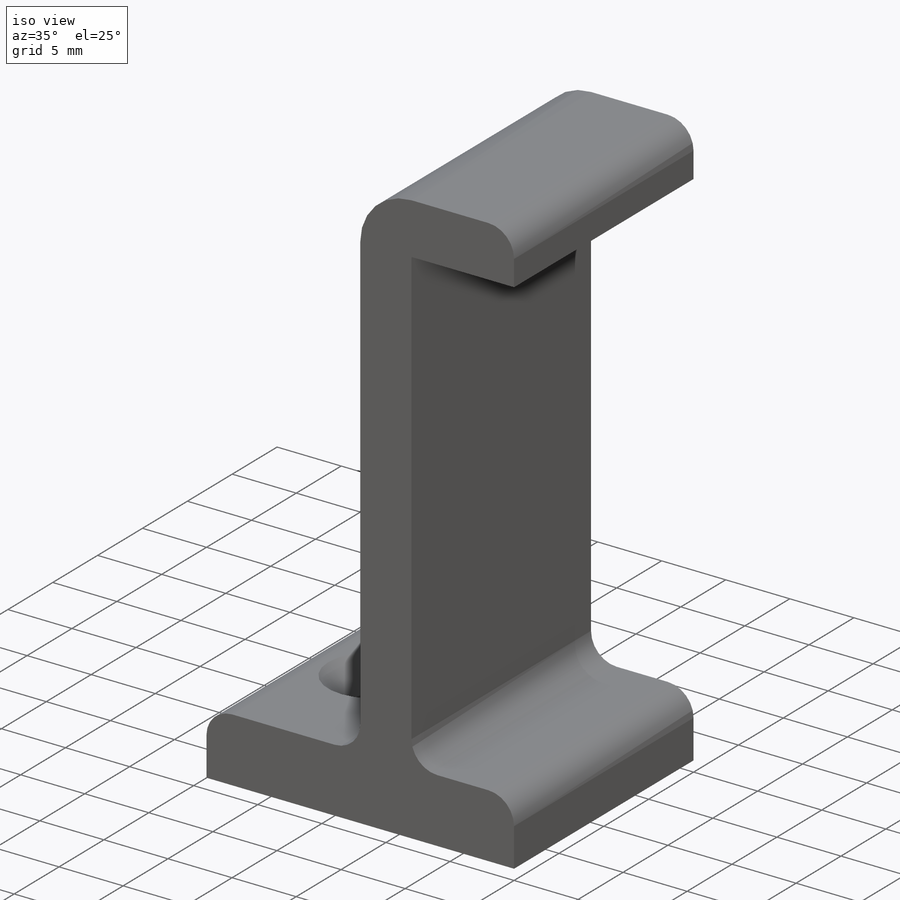
[diagram: iso view]
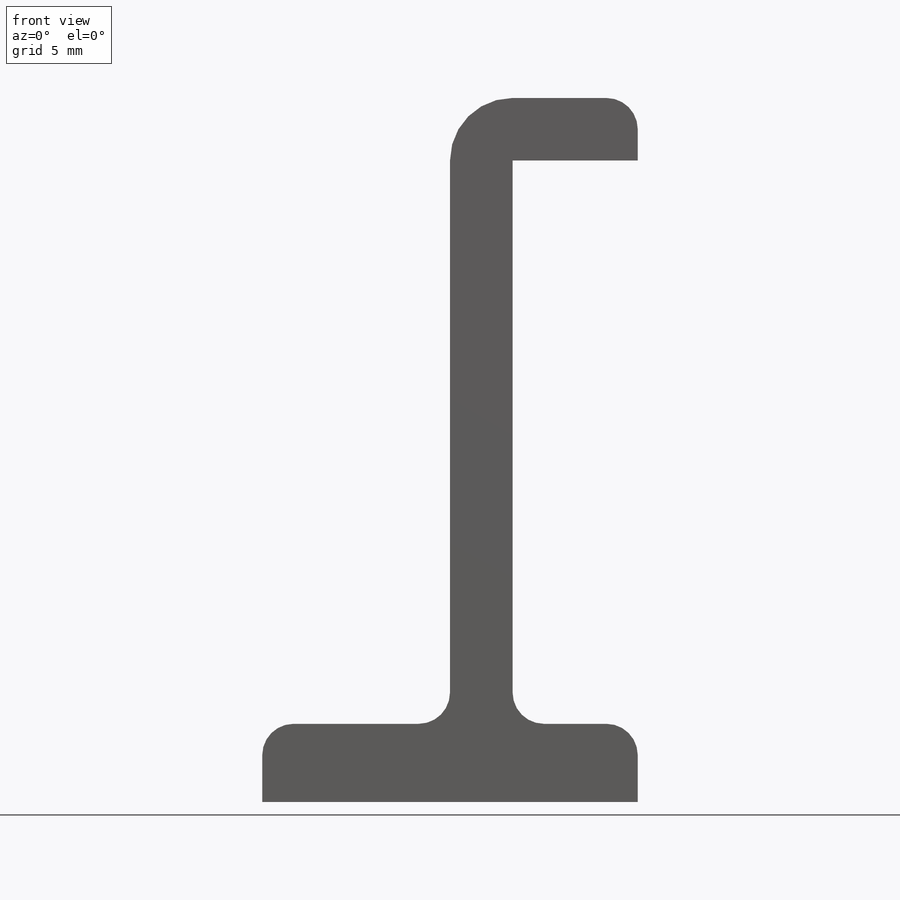
[diagram: front view]
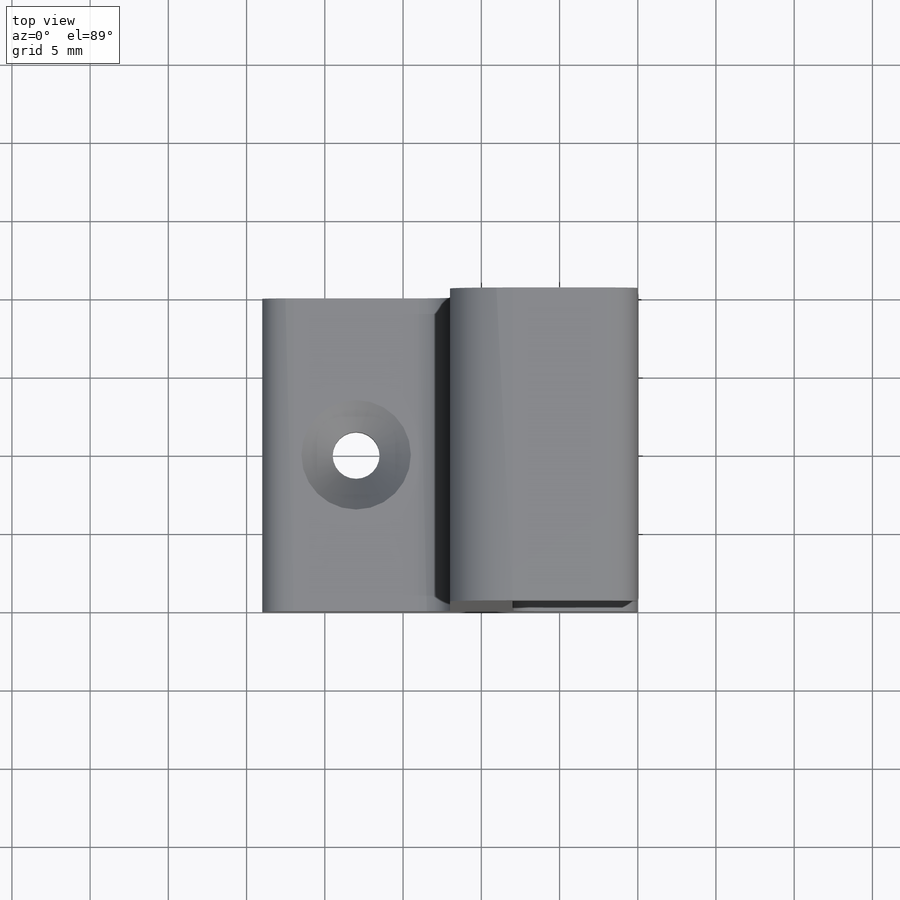
[diagram: top view]
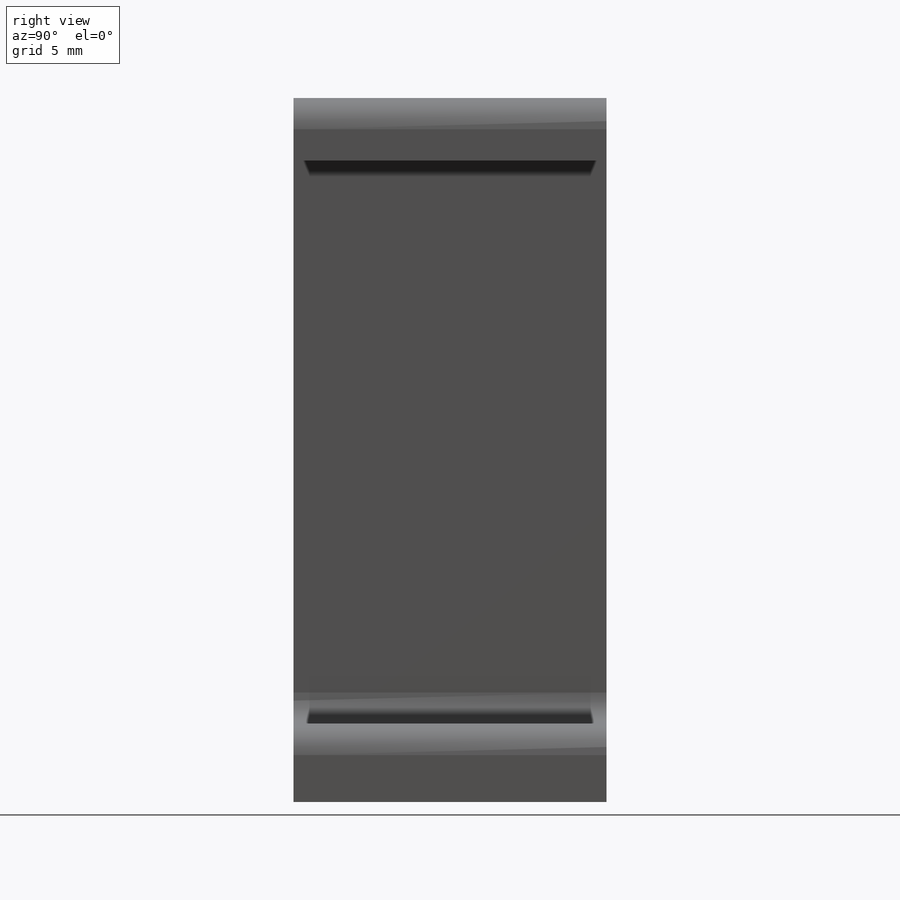
[diagram: right view]
SOLIDWORKS PART (.sldprt)
format: sldprt  version: not decoded by parser v0  size: 180,224 bytes
history: native  units: mm
features: plane x3, sketch x2, fillet x2, material x1, extrude x1, cut_extrude x1, chamfer x1 (+9 scaffold rows collapsed)
feature tree (20):
  scaffold x9  (default folders/planes/origin — collapsed)
  material  "Material <nicht festgelegt>"
  plane  "Ebene vorne"
  plane  "Ebene oben"
  plane  "Ebene rechts"
  sketch  "Skizze1"  dims[D1=41.0mm D2=5.0mm D3=4.0mm D4=8.0mm D5=12.0mm]
  extrude  "Aufsatz-Linear austragen1"  Depth=20mm
  sketch  "Skizze2"  dims[D1=~0.702566mm]
  cut_extrude  "Schnitt-Linear austragen1"  [1 undecoded]
  chamfer  "Fase1"  Distance=2mm Angle=45deg
  fillet  "Verrundung1"  Radius=2mm
  fillet  "Verrundung2"  Radius=4mm
decode coverage: 6 of 7 modeling features carry decoded parameters
note: ~ marks probable driven/reference dimensions
note: 1 parameter value undecoded
note: suppression state not decoded; provenance and decode notes live in map.json
